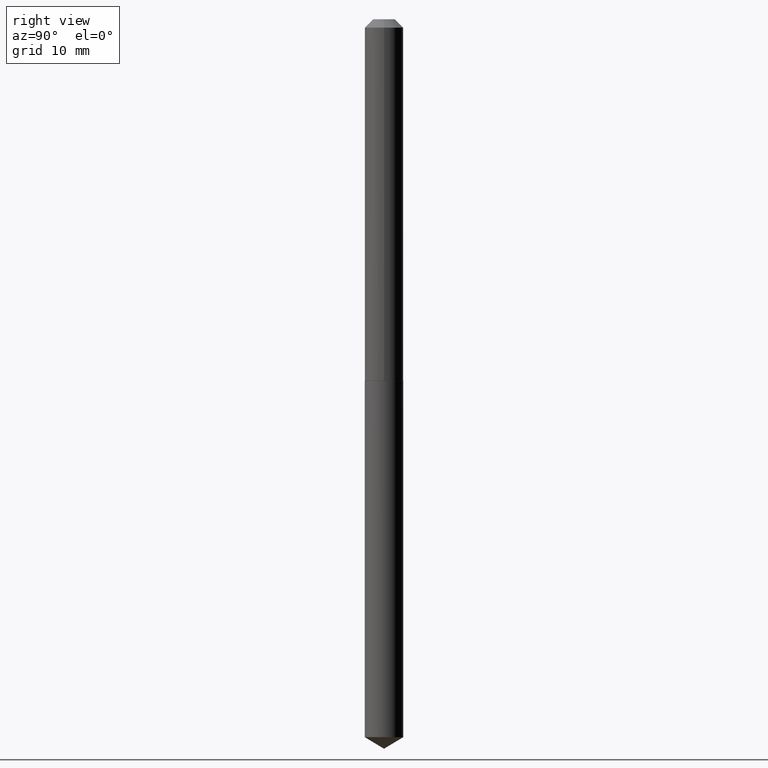
[diagram: clean part render]
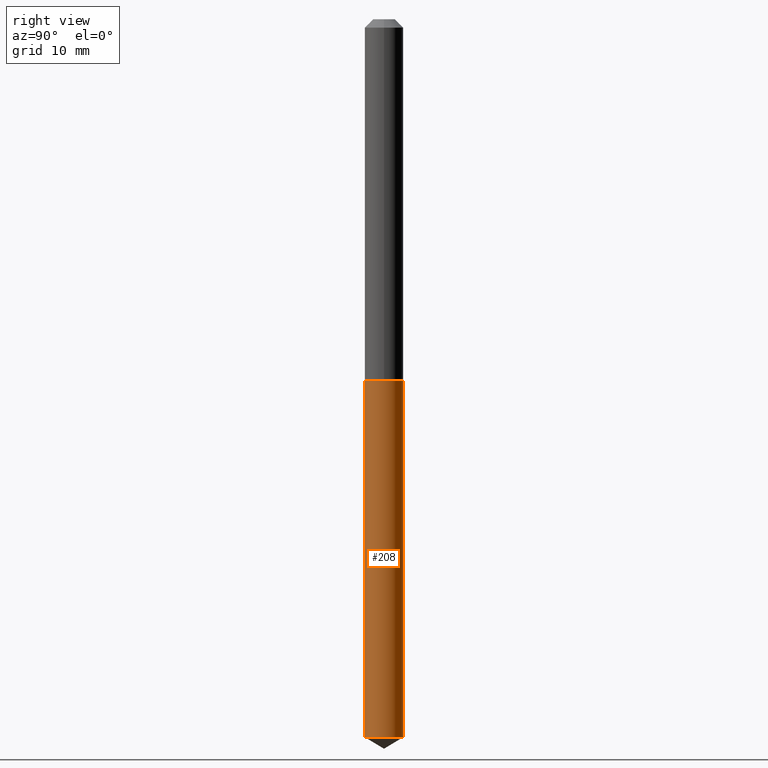
[diagram: same view with one face highlighted and labeled with its STEP entity id]
A machine part, right view. The second image highlights one B-rep face of the part: STEP entity #208.
In plain terms, the highlighted cylindrical surface (edge-blend (fillet) strip) has radius 1.8504 mm, axis along (-0, 0, 1).
Its self-contained STEP definition (entity closure, byte-faithful):
#3 = CARTESIAN_POINT ( 'NONE',  ( 5.176303830012663012E-16, 0.07284999999999522413, -1.366200000000000081 ) ) ;
#7 = ORIENTED_EDGE ( 'NONE', *, *, #154, .F. ) ;
#12 = DIRECTION ( 'NONE',  ( -2.445494545529433837E-29, 3.491444478637119500E-15, 1.000000000000000000 ) ) ;
#25 = AXIS2_PLACEMENT_3D ( 'NONE', #374, #12, #370 ) ;
#50 = LINE ( 'NONE', #258, #221 ) ;
#57 = DIRECTION ( 'NONE',  ( -2.445494545529433837E-29, 3.491444478637119105E-15, 1.000000000000000000 ) ) ;
#58 = EDGE_LOOP ( 'NONE', ( #214, #121, #7, #209 ) ) ;
#85 = DIRECTION ( 'NONE',  ( -2.445494545529433837E-29, 3.491444478637119500E-15, 1.000000000000000000 ) ) ;
#86 = CIRCLE ( 'NONE', #372, 0.07284999999999999809 ) ;
#111 = FACE_OUTER_BOUND ( 'NONE', #58, .T. ) ;
#114 = DIRECTION ( 'NONE',  ( -6.982962677686265922E-15, -1.000000000000000000, 3.749962928845934523E-15 ) ) ;
#116 = CARTESIAN_POINT ( 'NONE',  ( 3.340999483010132766E-29, -4.770061805127504889E-15, -1.366199999999999859 ) ) ;
#121 = ORIENTED_EDGE ( 'NONE', *, *, #248, .T. ) ;
#136 = VECTOR ( 'NONE', #57, 39.37007874015748143 ) ;
#154 = EDGE_CURVE ( 'NONE', #162, #278, #86, .T. ) ;
#161 = CIRCLE ( 'NONE', #25, 0.07285000000000001197 ) ;
#162 = VERTEX_POINT ( 'NONE', #234 ) ;
#172 = DIRECTION ( 'NONE',  ( -2.445494545529433837E-29, 3.491444478637119500E-15, 1.000000000000000000 ) ) ;
#178 = EDGE_CURVE ( 'NONE', #368, #162, #50, .T. ) ;
#197 = CYLINDRICAL_SURFACE ( 'NONE', #250, 0.07284999999999999809 ) ;
#208 = ADVANCED_FACE ( 'NONE', ( #111 ), #197, .T. ) ;
#209 = ORIENTED_EDGE ( 'NONE', *, *, #178, .F. ) ;
#214 = ORIENTED_EDGE ( 'NONE', *, *, #325, .T. ) ;
#221 = VECTOR ( 'NONE', #262, 39.37007874015748143 ) ;
#234 = CARTESIAN_POINT ( 'NONE',  ( -5.087088310694110530E-16, -0.07285000000000477205, -1.366199999999999415 ) ) ;
#248 = EDGE_CURVE ( 'NONE', #273, #278, #298, .T. ) ;
#250 = AXIS2_PLACEMENT_3D ( 'NONE', #320, #172, #351 ) ;
#258 = CARTESIAN_POINT ( 'NONE',  ( -5.087088310694110530E-16, -0.07285000000000477205, -1.366199999999999415 ) ) ;
#262 = DIRECTION ( 'NONE',  ( -2.445494545529433837E-29, 3.491444478637119105E-15, 1.000000000000000000 ) ) ;
#269 = CARTESIAN_POINT ( 'NONE',  ( 5.176303830012991375E-16, 0.07284999999999051956, -2.712127303903842268 ) ) ;
#273 = VERTEX_POINT ( 'NONE', #269 ) ;
#278 = VERTEX_POINT ( 'NONE', #364 ) ;
#298 = LINE ( 'NONE', #3, #136 ) ;
#311 = CARTESIAN_POINT ( 'NONE',  ( -5.087088310693781180E-16, -0.07285000000000946274, -2.712127303903842268 ) ) ;
#320 = CARTESIAN_POINT ( 'NONE',  ( 3.340999483010132766E-29, -4.770061805127504889E-15, -1.366199999999999859 ) ) ;
#325 = EDGE_CURVE ( 'NONE', #368, #273, #161, .T. ) ;
#351 = DIRECTION ( 'NONE',  ( -6.982962677686265922E-15, -1.000000000000000000, 3.749962928845934523E-15 ) ) ;
#364 = CARTESIAN_POINT ( 'NONE',  ( 5.176303830012994334E-16, 0.07284999999999522413, -1.366200000000000081 ) ) ;
#368 = VERTEX_POINT ( 'NONE', #311 ) ;
#370 = DIRECTION ( 'NONE',  ( -6.982962677686265133E-15, -1.000000000000000000, 0.000000000000000000 ) ) ;
#372 = AXIS2_PLACEMENT_3D ( 'NONE', #116, #85, #114 ) ;
#374 = CARTESIAN_POINT ( 'NONE',  ( 6.632457363386118118E-29, -9.469292258989520531E-15, -2.712127303903842268 ) ) ;